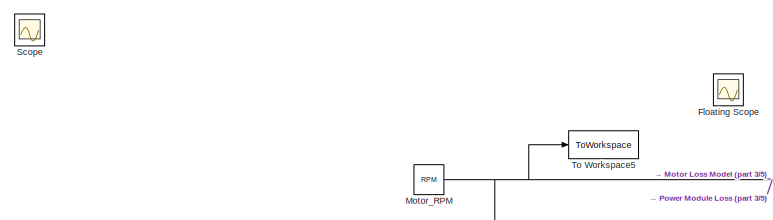
[diagram: root canvas - part 1/5, top left region]
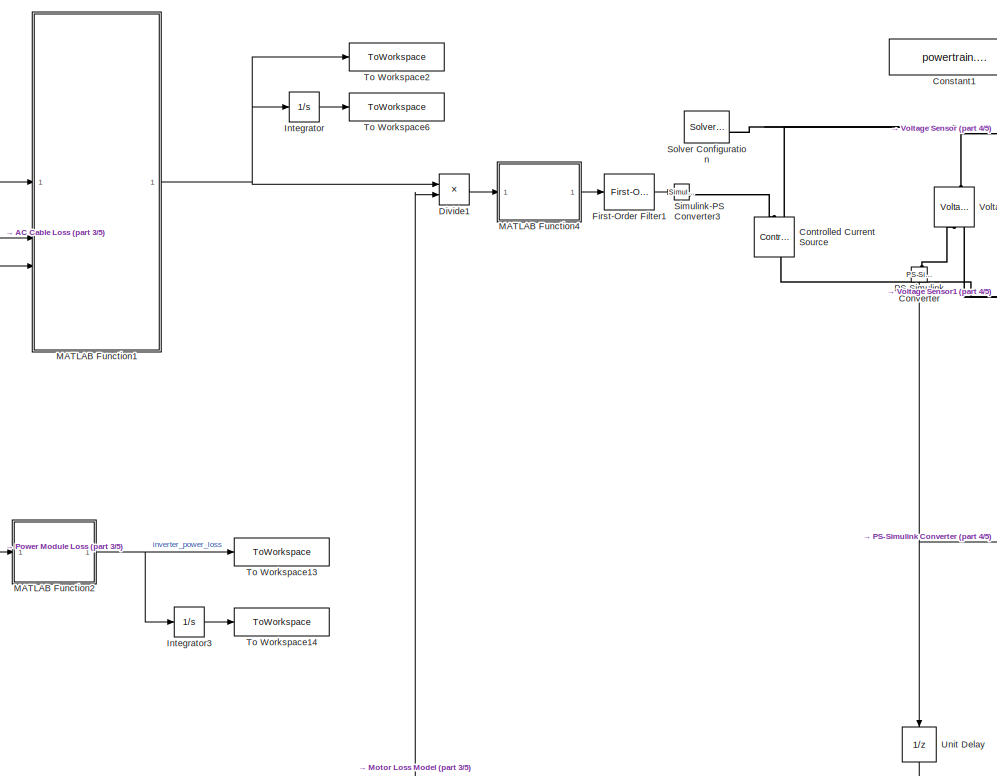
[diagram: root canvas - part 2/5, central region]
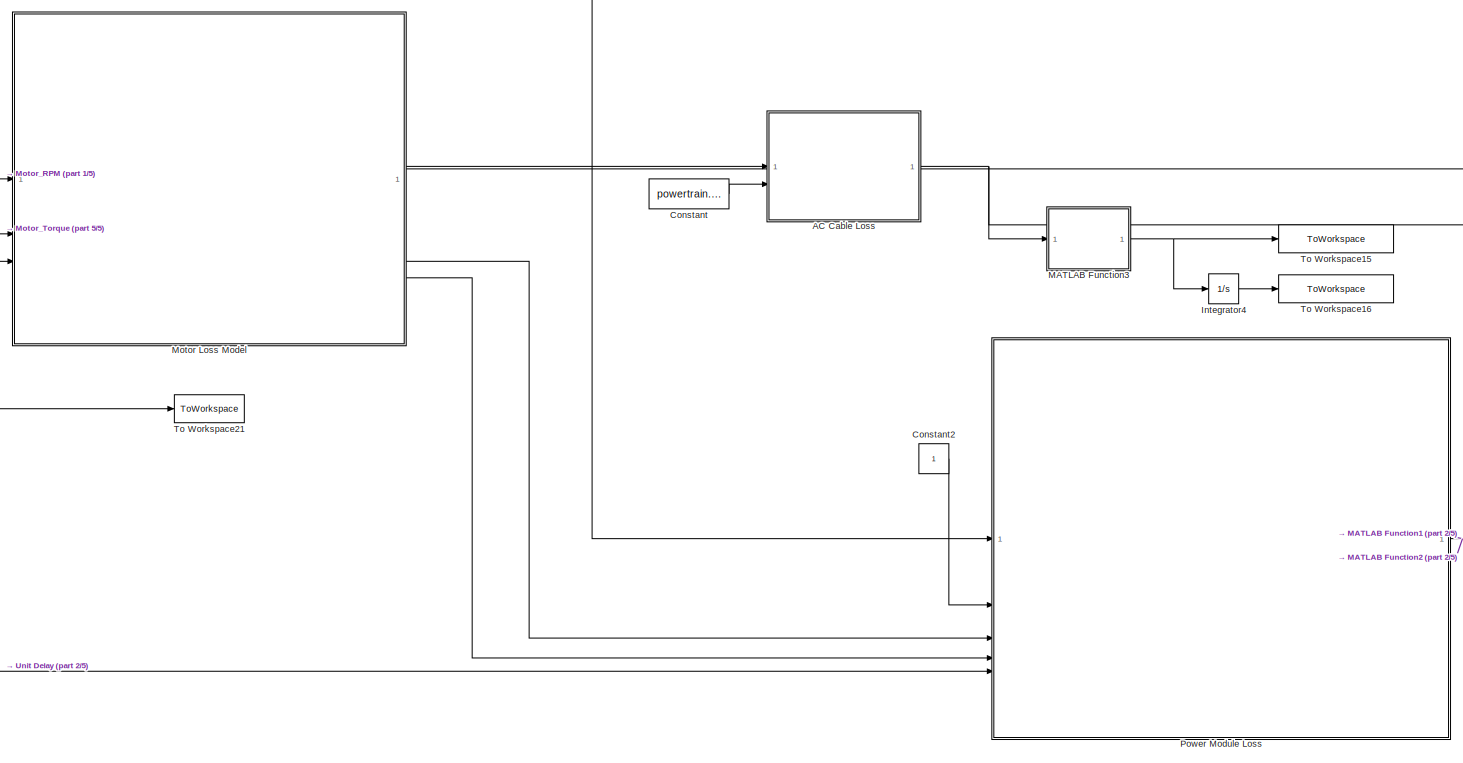
[diagram: root canvas - part 3/5, middle left region]
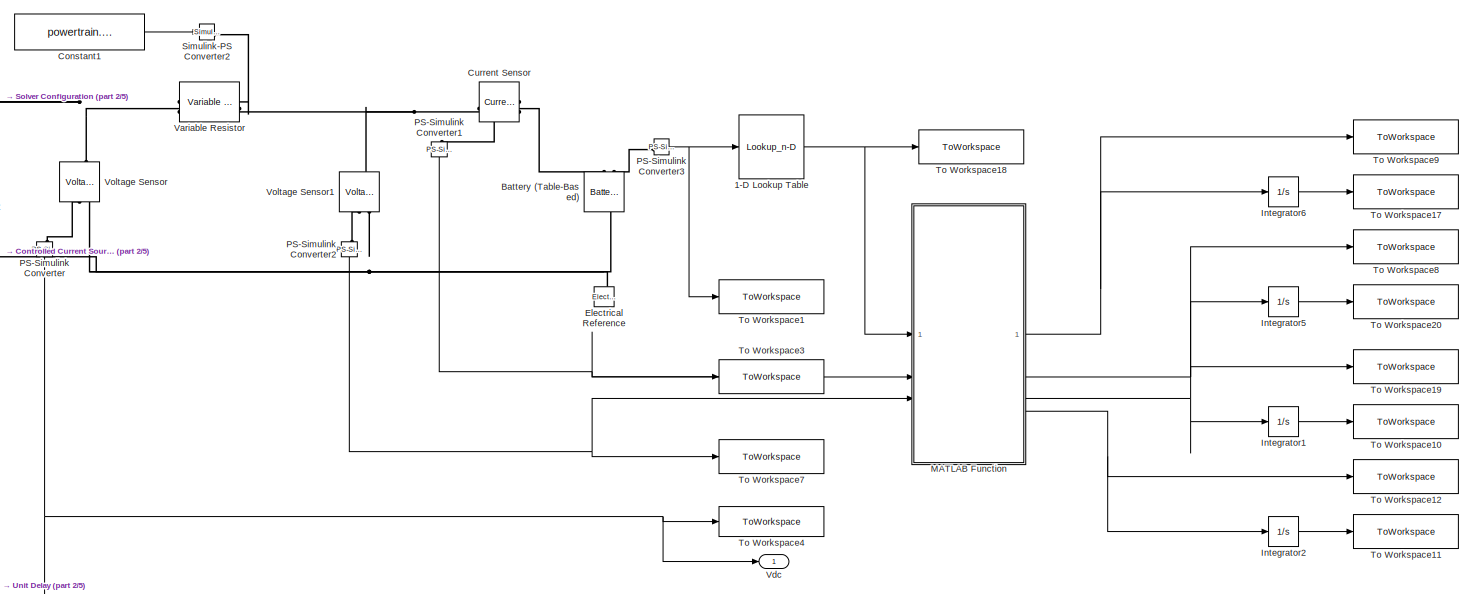
[diagram: root canvas - part 4/5, middle right region]
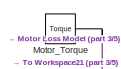
[diagram: root canvas - part 5/5, middle left region]
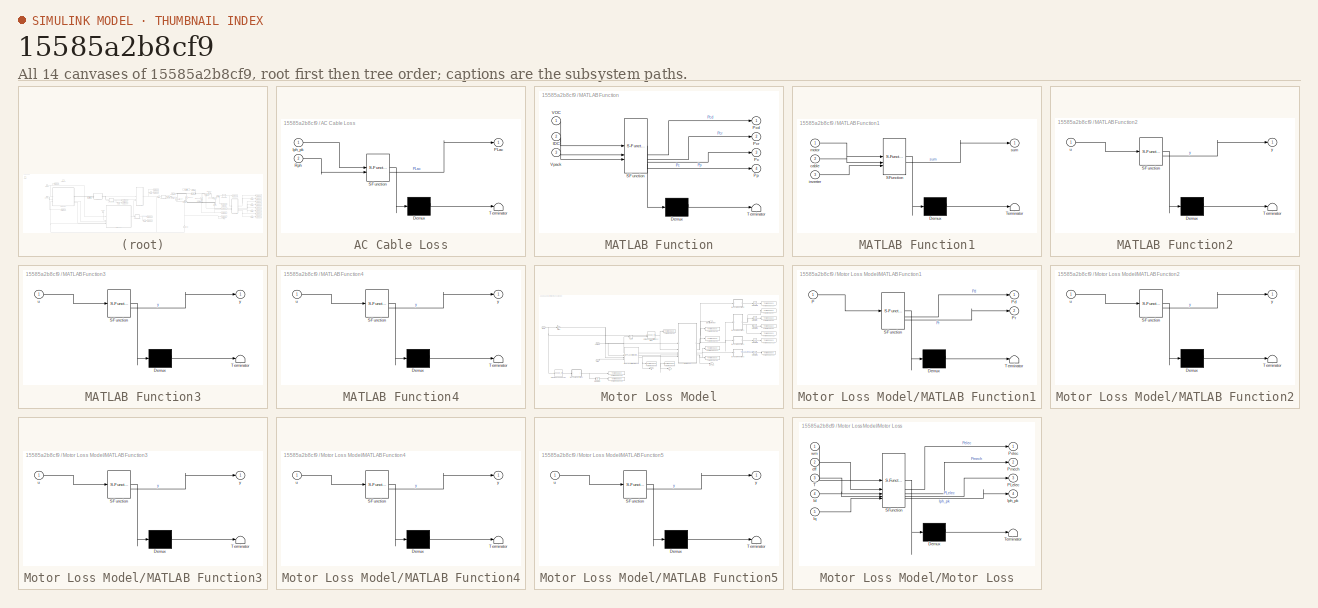
[diagram: thumbnail index - all 14 canvases of the model, root first then tree order]
MODEL slx_15585a2b8cf9
KIND model
CONFIG AbsTol = auto
CONFIG EnableMultiTasking = off
CONFIG FixedStep = auto
CONFIG MaxStep = auto
CONFIG MinStep = 1e-6
CONFIG RelTol = 1e-3
CONFIG SampleTimeConstraint = Unconstrained
CONFIG SolverName = VariableStepAuto
CONFIG StartTime = 0.0
CONFIG StopTime = 2862
WORKSPACE source: mxarray member
WORKSPACE surfaceBlockParameters: Simulink.LookupTable (value not decoded)
BLOCK [Lookup_n-D] 1-D Lookup Table
  BreakpointsForDimension1 = battery.soc_x_ocv_y(:,1)
  InputPortMap = u0
  InternalRulePriority = Speed
  NumberOfTableDimensions = 1
  RndMeth = Simplest
  Table = battery.soc_x_ocv_y(:,2)*battery.S
BLOCK [SubSystem] AC Cable Loss
  ErrorFcn = Stateflow.Translate.translate
  PermitHierarchicalResolution = ExplicitOnly
  SFBlockType = MATLAB Function
  TreatAsAtomicUnit = on
BLOCK [Demux] AC Cable Loss/ Demux 
  Outputs = 1
BLOCK [S-Function] AC Cable Loss/ SFunction 
  EnableBusSupport = on
  FunctionName = sf_sfun
  PortCounts = [2 2]
  SFcnIsStateOwnerBlock = off
  SFunctionDeploymentMode = off
  Tag = Stateflow S-Function 1
BLOCK [Terminator] AC Cable Loss/ Terminator 
BLOCK [Inport] AC Cable Loss/Iph_pk
BLOCK [Outport] AC Cable Loss/PLac
BLOCK [Inport] AC Cable Loss/Rph
  Port = 2
BLOCK [Reference] Battery (Table-Based)  REF=batteryecm_lib/Battery
(Table-Based)
  LibrarySourceBlock = batt_lib/Cells/Battery\n(Table-Based)
  NameLocation = right
  SourceBlock = batteryecm_lib/Battery\n(Table-Based)
  SourceType = Battery\n(Table-Based)
BLOCK [Constant] Constant
  Value = powertrain.Rph
BLOCK [Constant] Constant1
  Value = powertrain.Rdc
BLOCK [Constant] Constant2
BLOCK [Reference] Controlled Current Source  REF=fl_lib/Electrical/Electrical Sources/Controlled Current
Source
  NameLocation = left
  SourceBlock = fl_lib/Electrical/Electrical Sources/Controlled Current\nSource
  SourceType = Controlled Current\nSource
BLOCK [Reference] Current Sensor  REF=fl_lib/Electrical/Electrical Sensors/Current Sensor
  NameLocation = top
  SourceBlock = fl_lib/Electrical/Electrical Sensors/Current Sensor
  SourceType = Current Sensor
BLOCK [Product] Divide1
  Inputs = */
BLOCK [Reference] Electrical Reference  REF=fl_lib/Electrical/Electrical Elements/Electrical Reference
  NameLocation = right
  SourceBlock = fl_lib/Electrical/Electrical Elements/Electrical Reference
  SourceType = Electrical Reference
BLOCK [Reference] First-Order Filter1  REF=spsFirstOrderFilterLib/First-Order
Filter
  LibrarySourceBlock = sps_lib/Control/Filters/First-Order\nFilter
  SourceBlock = spsFirstOrderFilterLib/First-Order\nFilter
  SourceType = First-Order Filter
BLOCK [Scope] Floating Scope
  Floating = on
  NumInputPorts = 1
  ScopeSpecificationString = Simulink.scopes.TimeScopeBlockCfg('CurrentConfiguration', extmgr.ConfigurationSet(extmgr.Configuration('Core','General UI',true),extmgr.Configuration('Core','Source UI',true),extmgr.Configuration('Sources','WiredSimulink',true,'DataLoggingVariableName','ScopeData1'),extmgr.Configuration('Visuals','Time Domain',true,'SerializedDisplays',{struct('MinYLimReal','-481.00000','MaxYLimReal','3899.00000',...<+3468ch>
BLOCK [Integrator] Integrator
BLOCK [Integrator] Integrator1
BLOCK [Integrator] Integrator2
BLOCK [Integrator] Integrator3
BLOCK [Integrator] Integrator4
BLOCK [Integrator] Integrator5
BLOCK [Integrator] Integrator6
BLOCK [SubSystem] MATLAB Function
  ErrorFcn = Stateflow.Translate.translate
  PermitHierarchicalResolution = ExplicitOnly
  SFBlockType = MATLAB Function
  TreatAsAtomicUnit = on
BLOCK [Demux] MATLAB Function/ Demux 
  Outputs = 1
BLOCK [S-Function] MATLAB Function/ SFunction 
  EnableBusSupport = on
  FunctionName = sf_sfun
  PortCounts = [3 5]
  SFcnIsStateOwnerBlock = off
  SFunctionDeploymentMode = off
  Tag = Stateflow S-Function 47
BLOCK [Terminator] MATLAB Function/ Terminator 
BLOCK [Inport] MATLAB Function/IDC
  Port = 2
BLOCK [Outport] MATLAB Function/Pc
  Port = 3
BLOCK [Outport] MATLAB Function/Pcd
BLOCK [Outport] MATLAB Function/Pcr
  Port = 2
BLOCK [Outport] MATLAB Function/Pp
  Port = 4
BLOCK [Inport] MATLAB Function/VOC
BLOCK [Inport] MATLAB Function/Vpack
  Port = 3
BLOCK [SubSystem] MATLAB Function1
  ErrorFcn = Stateflow.Translate.translate
  PermitHierarchicalResolution = ExplicitOnly
  SFBlockType = MATLAB Function
  TreatAsAtomicUnit = on
BLOCK [Demux] MATLAB Function1/ Demux 
  Outputs = 1
BLOCK [S-Function] MATLAB Function1/ SFunction 
  EnableBusSupport = on
  FunctionName = sf_sfun
  PortCounts = [3 2]
  SFcnIsStateOwnerBlock = off
  SFunctionDeploymentMode = off
  Tag = Stateflow S-Function 5
BLOCK [Terminator] MATLAB Function1/ Terminator 
BLOCK [Inport] MATLAB Function1/cable
  Port = 2
BLOCK [Inport] MATLAB Function1/inverter
  Port = 3
BLOCK [Inport] MATLAB Function1/motor
BLOCK [Outport] MATLAB Function1/sum
BLOCK [SubSystem] MATLAB Function2
  ErrorFcn = Stateflow.Translate.translate
  PermitHierarchicalResolution = ExplicitOnly
  SFBlockType = MATLAB Function
  TreatAsAtomicUnit = on
BLOCK [Demux] MATLAB Function2/ Demux 
  Outputs = 1
BLOCK [S-Function] MATLAB Function2/ SFunction 
  EnableBusSupport = on
  FunctionName = sf_sfun
  PortCounts = [1 2]
  SFcnIsStateOwnerBlock = off
  SFunctionDeploymentMode = off
  Tag = Stateflow S-Function 9
BLOCK [Terminator] MATLAB Function2/ Terminator 
BLOCK [Inport] MATLAB Function2/u
BLOCK [Outport] MATLAB Function2/y
BLOCK [SubSystem] MATLAB Function3
  ErrorFcn = Stateflow.Translate.translate
  PermitHierarchicalResolution = ExplicitOnly
  SFBlockType = MATLAB Function
  TreatAsAtomicUnit = on
BLOCK [Demux] MATLAB Function3/ Demux 
  Outputs = 1
BLOCK [S-Function] MATLAB Function3/ SFunction 
  EnableBusSupport = on
  FunctionName = sf_sfun
  PortCounts = [1 2]
  SFcnIsStateOwnerBlock = off
  SFunctionDeploymentMode = off
  Tag = Stateflow S-Function 10
BLOCK [Terminator] MATLAB Function3/ Terminator 
BLOCK [Inport] MATLAB Function3/u
BLOCK [Outport] MATLAB Function3/y
BLOCK [SubSystem] MATLAB Function4
  ErrorFcn = Stateflow.Translate.translate
  PermitHierarchicalResolution = ExplicitOnly
  SFBlockType = MATLAB Function
  TreatAsAtomicUnit = on
BLOCK [Demux] MATLAB Function4/ Demux 
  Outputs = 1
BLOCK [S-Function] MATLAB Function4/ SFunction 
  EnableBusSupport = on
  FunctionName = sf_sfun
  PortCounts = [1 2]
  SFcnIsStateOwnerBlock = off
  SFunctionDeploymentMode = off
  Tag = Stateflow S-Function 12
BLOCK [Terminator] MATLAB Function4/ Terminator 
BLOCK [Inport] MATLAB Function4/u
BLOCK [Outport] MATLAB Function4/y
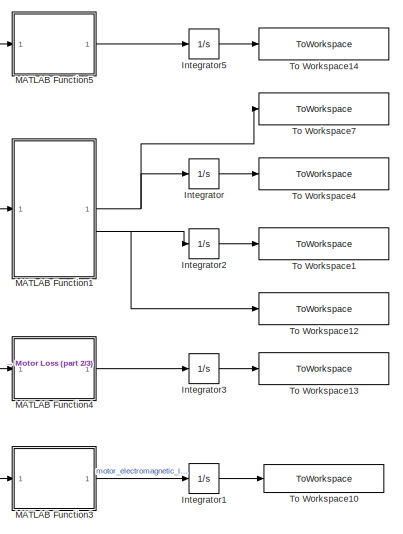
[diagram: Motor Loss Model - part 1/3, middle right region]
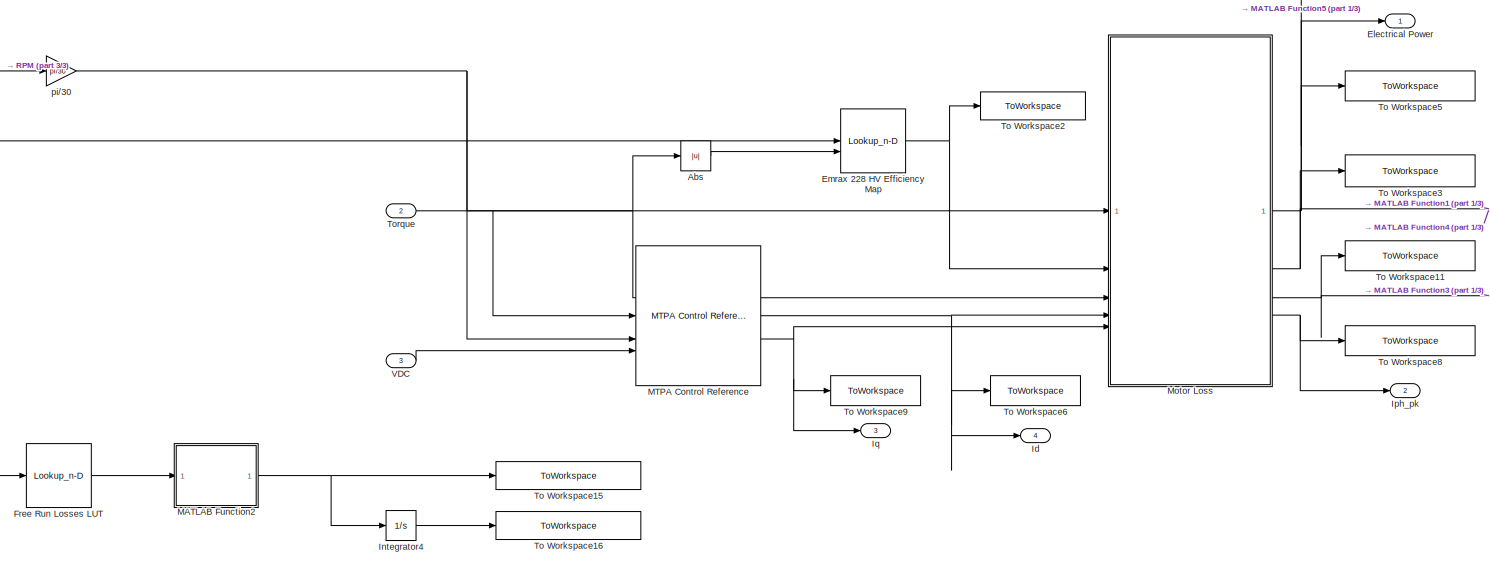
[diagram: Motor Loss Model - part 2/3, central region]
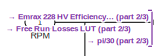
[diagram: Motor Loss Model - part 3/3, middle left region]
BLOCK [SubSystem] Motor Loss Model
BLOCK [Abs] Motor Loss Model/Abs
  SaturateOnIntegerOverflow = off
BLOCK [Outport] Motor Loss Model/Electrical Power
BLOCK [Lookup_n-D] Motor Loss Model/Emrax 228 HV Efficiency Map
  AttributesFormatString = Extrapolation=%<ExtrapMethod>
  BreakpointsForDimension1 = [1:3]
  BreakpointsForDimension2 = [1:3]
  DataSpecification = Lookup table object
  ExtrapMethod = Clip
  InputPortMap = u0,u1
  InternalRulePriority = Speed
  LookupTableObject = surfaceBlockParameters
  RndMeth = Simplest
BLOCK [Lookup_n-D] Motor Loss Model/Free Run Losses LUT
  BreakpointsForDimension1 = motor.RPM_x_Power_y(:, 1)
  InputPortMap = u0
  InternalRulePriority = Speed
  NumberOfTableDimensions = 1
  RndMeth = Simplest
  Table = motor.RPM_x_Power_y(:, 2)
BLOCK [Outport] Motor Loss Model/Id
  OutDataTypeStr = double
  Port = 4
BLOCK [Integrator] Motor Loss Model/Integrator
BLOCK [Integrator] Motor Loss Model/Integrator1
BLOCK [Integrator] Motor Loss Model/Integrator2
BLOCK [Integrator] Motor Loss Model/Integrator3
BLOCK [Integrator] Motor Loss Model/Integrator4
BLOCK [Integrator] Motor Loss Model/Integrator5
BLOCK [Outport] Motor Loss Model/Iph_pk
  Port = 2
BLOCK [Outport] Motor Loss Model/Iq
  OutDataTypeStr = double
  Port = 3
BLOCK [SubSystem] Motor Loss Model/MATLAB Function1
  ErrorFcn = Stateflow.Translate.translate
  PermitHierarchicalResolution = ExplicitOnly
  SFBlockType = MATLAB Function
  TreatAsAtomicUnit = on
BLOCK [Demux] Motor Loss Model/MATLAB Function1/ Demux 
  Outputs = 1
BLOCK [S-Function] Motor Loss Model/MATLAB Function1/ SFunction 
  EnableBusSupport = on
  FunctionName = sf_sfun
  PortCounts = [1 3]
  SFcnIsStateOwnerBlock = off
  SFunctionDeploymentMode = off
  Tag = Stateflow S-Function 14
BLOCK [Terminator] Motor Loss Model/MATLAB Function1/ Terminator 
BLOCK [Inport] Motor Loss Model/MATLAB Function1/P
BLOCK [Outport] Motor Loss Model/MATLAB Function1/Pd
BLOCK [Outport] Motor Loss Model/MATLAB Function1/Pr
  Port = 2
BLOCK [SubSystem] Motor Loss Model/MATLAB Function2
  ErrorFcn = Stateflow.Translate.translate
  PermitHierarchicalResolution = ExplicitOnly
  SFBlockType = MATLAB Function
  TreatAsAtomicUnit = on
BLOCK [Demux] Motor Loss Model/MATLAB Function2/ Demux 
  Outputs = 1
BLOCK [S-Function] Motor Loss Model/MATLAB Function2/ SFunction 
  EnableBusSupport = on
  FunctionName = sf_sfun
  PortCounts = [1 2]
  SFcnIsStateOwnerBlock = off
  SFunctionDeploymentMode = off
  Tag = Stateflow S-Function 8
BLOCK [Terminator] Motor Loss Model/MATLAB Function2/ Terminator 
BLOCK [Inport] Motor Loss Model/MATLAB Function2/u
BLOCK [Outport] Motor Loss Model/MATLAB Function2/y
BLOCK [SubSystem] Motor Loss Model/MATLAB Function3
  ErrorFcn = Stateflow.Translate.translate
  PermitHierarchicalResolution = ExplicitOnly
  SFBlockType = MATLAB Function
  TreatAsAtomicUnit = on
BLOCK [Demux] Motor Loss Model/MATLAB Function3/ Demux 
  Outputs = 1
BLOCK [S-Function] Motor Loss Model/MATLAB Function3/ SFunction 
  EnableBusSupport = on
  FunctionName = sf_sfun
  PortCounts = [1 2]
  SFcnIsStateOwnerBlock = off
  SFunctionDeploymentMode = off
  Tag = Stateflow S-Function 11
BLOCK [Terminator] Motor Loss Model/MATLAB Function3/ Terminator 
BLOCK [Inport] Motor Loss Model/MATLAB Function3/u
BLOCK [Outport] Motor Loss Model/MATLAB Function3/y
BLOCK [SubSystem] Motor Loss Model/MATLAB Function4
  ErrorFcn = Stateflow.Translate.translate
  PermitHierarchicalResolution = ExplicitOnly
  SFBlockType = MATLAB Function
  TreatAsAtomicUnit = on
BLOCK [Demux] Motor Loss Model/MATLAB Function4/ Demux 
  Outputs = 1
BLOCK [S-Function] Motor Loss Model/MATLAB Function4/ SFunction 
  EnableBusSupport = on
  FunctionName = sf_sfun
  PortCounts = [1 2]
  SFcnIsStateOwnerBlock = off
  SFunctionDeploymentMode = off
  Tag = Stateflow S-Function 13
BLOCK [Terminator] Motor Loss Model/MATLAB Function4/ Terminator 
BLOCK [Inport] Motor Loss Model/MATLAB Function4/u
BLOCK [Outport] Motor Loss Model/MATLAB Function4/y
BLOCK [SubSystem] Motor Loss Model/MATLAB Function5
  ErrorFcn = Stateflow.Translate.translate
  PermitHierarchicalResolution = ExplicitOnly
  SFBlockType = MATLAB Function
  TreatAsAtomicUnit = on
BLOCK [Demux] Motor Loss Model/MATLAB Function5/ Demux 
  Outputs = 1
BLOCK [S-Function] Motor Loss Model/MATLAB Function5/ SFunction 
  EnableBusSupport = on
  FunctionName = sf_sfun
  PortCounts = [1 2]
  SFcnIsStateOwnerBlock = off
  SFunctionDeploymentMode = off
  Tag = Stateflow S-Function 16
BLOCK [Terminator] Motor Loss Model/MATLAB Function5/ Terminator 
BLOCK [Inport] Motor Loss Model/MATLAB Function5/u
BLOCK [Outport] Motor Loss Model/MATLAB Function5/y
BLOCK [Reference] Motor Loss Model/MTPA Control Reference  REF=mcbcontrolslib/MTPA Control Reference
  LibrarySourceBlock = mcblib/Controls/Control Reference/MTPA Control Reference
  SourceBlock = mcbcontrolslib/MTPA Control Reference
  SourceType = MTPA Control Reference
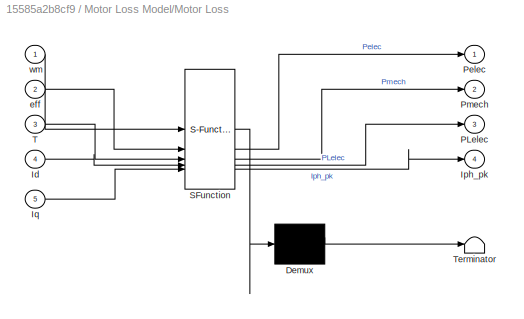
BLOCK [SubSystem] Motor Loss Model/Motor Loss
  ErrorFcn = Stateflow.Translate.translate
  PermitHierarchicalResolution = ExplicitOnly
  SFBlockType = MATLAB Function
  TreatAsAtomicUnit = on
BLOCK [Demux] Motor Loss Model/Motor Loss/ Demux 
  Outputs = 1
BLOCK [S-Function] Motor Loss Model/Motor Loss/ SFunction 
  EnableBusSupport = on
  FunctionName = sf_sfun
  PortCounts = [5 5]
  SFcnIsStateOwnerBlock = off
  SFunctionDeploymentMode = off
  Tag = Stateflow S-Function 3
BLOCK [Terminator] Motor Loss Model/Motor Loss/ Terminator 
BLOCK [Inport] Motor Loss Model/Motor Loss/Id
  Port = 4
BLOCK [Outport] Motor Loss Model/Motor Loss/Iph_pk
  Port = 4
BLOCK [Inport] Motor Loss Model/Motor Loss/Iq
  Port = 5
BLOCK [Outport] Motor Loss Model/Motor Loss/PLelec
  Port = 3
BLOCK [Outport] Motor Loss Model/Motor Loss/Pelec
BLOCK [Outport] Motor Loss Model/Motor Loss/Pmech
  Port = 2
BLOCK [Inport] Motor Loss Model/Motor Loss/T
  Port = 3
BLOCK [Inport] Motor Loss Model/Motor Loss/eff
  Port = 2
BLOCK [Inport] Motor Loss Model/Motor Loss/wm
BLOCK [Inport] Motor Loss Model/RPM
BLOCK [ToWorkspace] Motor Loss Model/To Workspace1
  FixptAsFi = on
  MaxDataPoints = inf
  SampleTime = -1
  VariableName = Motor_Regen_Energy
BLOCK [ToWorkspace] Motor Loss Model/To Workspace10
  FixptAsFi = on
  MaxDataPoints = inf
  SampleTime = -1
  VariableName = Motor_EM_Energy_Loss
BLOCK [ToWorkspace] Motor Loss Model/To Workspace11
  FixptAsFi = on
  MaxDataPoints = inf
  SampleTime = -1
  VariableName = Motor_Electromagnetic_Loss
BLOCK [ToWorkspace] Motor Loss Model/To Workspace12
  FixptAsFi = on
  MaxDataPoints = inf
  SampleTime = -1
  VariableName = Motor_Regen_Power
BLOCK [ToWorkspace] Motor Loss Model/To Workspace13
  FixptAsFi = on
  MaxDataPoints = inf
  SampleTime = -1
  VariableName = Motor_Mechanical_Energy
BLOCK [ToWorkspace] Motor Loss Model/To Workspace14
  FixptAsFi = on
  MaxDataPoints = inf
  SampleTime = -1
  VariableName = Motor_Electrical_Energy
BLOCK [ToWorkspace] Motor Loss Model/To Workspace15
  FixptAsFi = on
  MaxDataPoints = inf
  SampleTime = -1
  VariableName = Motor_Mechanical_Power_Loss
BLOCK [ToWorkspace] Motor Loss Model/To Workspace16
  FixptAsFi = on
  MaxDataPoints = inf
  SampleTime = -1
  VariableName = Motor_Mechanical_Energy_Loss
BLOCK [ToWorkspace] Motor Loss Model/To Workspace2
  FixptAsFi = on
  MaxDataPoints = inf
  SampleTime = -1
  VariableName = Motor_Efficiency
BLOCK [ToWorkspace] Motor Loss Model/To Workspace3
  FixptAsFi = on
  MaxDataPoints = inf
  SampleTime = -1
  VariableName = Motor_Mechanical_Power
BLOCK [ToWorkspace] Motor Loss Model/To Workspace4
  FixptAsFi = on
  MaxDataPoints = inf
  SampleTime = -1
  VariableName = Motor_Discharge_Energy
BLOCK [ToWorkspace] Motor Loss Model/To Workspace5
  FixptAsFi = on
  MaxDataPoints = inf
  SampleTime = -1
  VariableName = Motor_Electrical_Power
BLOCK [ToWorkspace] Motor Loss Model/To Workspace6
  FixptAsFi = on
  MaxDataPoints = inf
  SampleTime = -1
  VariableName = Id_mtpa
BLOCK [ToWorkspace] Motor Loss Model/To Workspace7
  FixptAsFi = on
  MaxDataPoints = inf
  SampleTime = -1
  VariableName = Motor_Discharge_Power
BLOCK [ToWorkspace] Motor Loss Model/To Workspace8
  FixptAsFi = on
  MaxDataPoints = inf
  SampleTime = -1
  VariableName = Iph_pk
BLOCK [ToWorkspace] Motor Loss Model/To Workspace9
  FixptAsFi = on
  MaxDataPoints = inf
  SampleTime = -1
  VariableName = Iq_mtpa
BLOCK [Inport] Motor Loss Model/Torque
  Port = 2
BLOCK [Inport] Motor Loss Model/VDC
  Port = 3
BLOCK [Gain] Motor Loss Model/pi//30
  Gain = pi/30
  NameLocation = top
BLOCK [Constant] Motor_RPM
  Value = RPM
BLOCK [Constant] Motor_Torque
  Value = Torque
BLOCK [Reference] PS-Simulink Converter  REF=nesl_utility/PS-Simulink
Converter
  NameLocation = left
  SourceBlock = nesl_utility/PS-Simulink\nConverter
  SourceType = PS-Simulink\nConverter
BLOCK [Reference] PS-Simulink Converter1  REF=nesl_utility/PS-Simulink
Converter
  NameLocation = left
  SourceBlock = nesl_utility/PS-Simulink\nConverter
  SourceType = PS-Simulink\nConverter
BLOCK [Reference] PS-Simulink Converter2  REF=nesl_utility/PS-Simulink
Converter
  NameLocation = left
  SourceBlock = nesl_utility/PS-Simulink\nConverter
  SourceType = PS-Simulink\nConverter
BLOCK [Reference] PS-Simulink Converter3  REF=nesl_utility/PS-Simulink
Converter
  SourceBlock = nesl_utility/PS-Simulink\nConverter
  SourceType = PS-Simulink\nConverter
BLOCK [SubSystem] Power Module Loss
  ReferencedSubsystem = PowerModuleLoss
BLOCK [Scope] Scope
  Floating = off
  IOType = viewer
  NumInputPorts = 1
  ScopeSpecificationString = Simulink.scopes.TimeScopeBlockCfg('CurrentConfiguration', extmgr.ConfigurationSet(extmgr.Configuration('Core','General UI',true),extmgr.Configuration('Core','Source UI',true),extmgr.Configuration('Sources','WiredSimulink',true),extmgr.Configuration('Visuals','Time Domain',true,'SerializedDisplays',{struct('MinYLimReal','-10.00000','MaxYLimReal','10.00000','YLabelReal','','MinYLimMag','0.00000','Ma...<+1326ch>
BLOCK [Reference] Simulink-PS Converter2  REF=nesl_utility/Simulink-PS
Converter
  SourceBlock = nesl_utility/Simulink-PS\nConverter
  SourceType = Simulink-PS\nConverter
BLOCK [Reference] Simulink-PS Converter3  REF=nesl_utility/Simulink-PS
Converter
  SourceBlock = nesl_utility/Simulink-PS\nConverter
  SourceType = Simulink-PS\nConverter
BLOCK [Reference] Solver Configuration  REF=nesl_utility/Solver
Configuration
  SourceBlock = nesl_utility/Solver\nConfiguration
  SourceType = Solver\nConfiguration
BLOCK [ToWorkspace] To Workspace1
  FixptAsFi = on
  MaxDataPoints = inf
  SampleTime = -1
  VariableName = SOC
BLOCK [ToWorkspace] To Workspace10
  FixptAsFi = on
  MaxDataPoints = inf
  SampleTime = -1
  VariableName = Cell_Energy
BLOCK [ToWorkspace] To Workspace11
  FixptAsFi = on
  MaxDataPoints = inf
  SampleTime = -1
  VariableName = Battery_Energy
BLOCK [ToWorkspace] To Workspace12
  FixptAsFi = on
  MaxDataPoints = inf
  SampleTime = -1
  VariableName = Battery_Power
BLOCK [ToWorkspace] To Workspace13
  FixptAsFi = on
  MaxDataPoints = inf
  SampleTime = -1
  VariableName = Inverter_Power_Loss
BLOCK [ToWorkspace] To Workspace14
  FixptAsFi = on
  MaxDataPoints = inf
  SampleTime = -1
  VariableName = Inverter_Energy_Loss
BLOCK [ToWorkspace] To Workspace15
  FixptAsFi = on
  MaxDataPoints = inf
  SampleTime = -1
  VariableName = AC_Cable_Power_Loss
BLOCK [ToWorkspace] To Workspace16
  FixptAsFi = on
  MaxDataPoints = inf
  SampleTime = -1
  VariableName = AC_Cable_Energy_Loss
BLOCK [ToWorkspace] To Workspace17
  FixptAsFi = on
  MaxDataPoints = inf
  SampleTime = -1
  VariableName = Cell_Discharge_Energy
BLOCK [ToWorkspace] To Workspace18
  FixptAsFi = on
  MaxDataPoints = inf
  SampleTime = -1
  VariableName = VOC
BLOCK [ToWorkspace] To Workspace19
  FixptAsFi = on
  MaxDataPoints = inf
  SampleTime = -1
  VariableName = Cell_Power
BLOCK [ToWorkspace] To Workspace2
  FixptAsFi = on
  MaxDataPoints = inf
  SampleTime = -1
  VariableName = Inverter_Power
BLOCK [ToWorkspace] To Workspace20
  FixptAsFi = on
  MaxDataPoints = inf
  SampleTime = -1
  VariableName = Cell_Regen_Energy
BLOCK [ToWorkspace] To Workspace21
  FixptAsFi = on
  MaxDataPoints = inf
  SampleTime = -1
  VariableName = Torque
BLOCK [ToWorkspace] To Workspace3
  FixptAsFi = on
  MaxDataPoints = inf
  SampleTime = -1
  VariableName = IDC
BLOCK [ToWorkspace] To Workspace4
  FixptAsFi = on
  MaxDataPoints = inf
  SampleTime = -1
  VariableName = VDC
BLOCK [ToWorkspace] To Workspace5
  FixptAsFi = on
  MaxDataPoints = inf
  SampleTime = -1
  VariableName = RPM
BLOCK [ToWorkspace] To Workspace6
  FixptAsFi = on
  MaxDataPoints = inf
  SampleTime = -1
  VariableName = Inverter_Energy
BLOCK [ToWorkspace] To Workspace7
  FixptAsFi = on
  MaxDataPoints = inf
  SampleTime = -1
  VariableName = Vpack
BLOCK [ToWorkspace] To Workspace8
  FixptAsFi = on
  MaxDataPoints = inf
  SampleTime = -1
  VariableName = Cell_Regen_Power
BLOCK [ToWorkspace] To Workspace9
  FixptAsFi = on
  MaxDataPoints = inf
  SampleTime = -1
  VariableName = Cell_Discharge_Power
BLOCK [UnitDelay] Unit Delay
  HasFrameUpgradeWarning = on
  InitialCondition = battery.Voc
  NameLocation = left
  SampleTime = -1
BLOCK [Reference] Variable Resistor  REF=fl_lib/Electrical/Electrical Elements/Variable Resistor
  NameLocation = top
  SourceBlock = fl_lib/Electrical/Electrical Elements/Variable Resistor
  SourceType = Variable Resistor
BLOCK [Outport] Vdc
BLOCK [Reference] Voltage Sensor  REF=fl_lib/Electrical/Electrical Sensors/Voltage Sensor
  NameLocation = right
  SourceBlock = fl_lib/Electrical/Electrical Sensors/Voltage Sensor
  SourceType = Voltage Sensor
BLOCK [Reference] Voltage Sensor1  REF=fl_lib/Electrical/Electrical Sensors/Voltage Sensor
  NameLocation = right
  SourceBlock = fl_lib/Electrical/Electrical Sensors/Voltage Sensor
  SourceType = Voltage Sensor
NET 1-D Lookup Table:1 -> MATLAB Function:1, To Workspace18:1
NET AC Cable Loss:1 -> MATLAB Function1:2, MATLAB Function3:1
LINE Constant1:1 -> Simulink-PS Converter2:1
LINE Constant2:1 -> Power Module Loss:2
LINE Constant:1 -> AC Cable Loss:2
LINE Divide1:1 -> MATLAB Function4:1
LINE First-Order Filter1:1 -> Simulink-PS Converter3:1
LINE Integrator1:1 -> To Workspace10:1
LINE Integrator2:1 -> To Workspace11:1
LINE Integrator3:1 -> To Workspace14:1
LINE Integrator4:1 -> To Workspace16:1
LINE Integrator5:1 -> To Workspace20:1
LINE Integrator6:1 -> To Workspace17:1
LINE Integrator:1 -> To Workspace6:1
NET MATLAB Function1:1 -> Divide1:1, Integrator:1, To Workspace2:1
NET MATLAB Function2:1 -> Integrator3:1, To Workspace13:1
NET MATLAB Function3:1 -> Integrator4:1, To Workspace15:1
LINE MATLAB Function4:1 -> First-Order Filter1:1
NET MATLAB Function:1 -> Integrator6:1, To Workspace9:1
NET MATLAB Function:2 -> Integrator5:1, To Workspace8:1
NET MATLAB Function:3 -> Integrator1:1, To Workspace19:1
NET MATLAB Function:4 -> Integrator2:1, To Workspace12:1
LINE Motor Loss Model/Abs:1 -> Motor Loss Model/Emrax 228 HV Efficiency Map:2
NET Motor Loss Model/Emrax 228 HV Efficiency Map:1 -> Motor Loss Model/Motor Loss:2, Motor Loss Model/To Workspace2:1
LINE Motor Loss Model/Free Run Losses LUT:1 -> Motor Loss Model/MATLAB Function2:1
LINE Motor Loss Model/Integrator1:1 -> Motor Loss Model/To Workspace10:1
LINE Motor Loss Model/Integrator2:1 -> Motor Loss Model/To Workspace1:1
LINE Motor Loss Model/Integrator3:1 -> Motor Loss Model/To Workspace13:1
LINE Motor Loss Model/Integrator4:1 -> Motor Loss Model/To Workspace16:1
LINE Motor Loss Model/Integrator5:1 -> Motor Loss Model/To Workspace14:1
LINE Motor Loss Model/Integrator:1 -> Motor Loss Model/To Workspace4:1
NET Motor Loss Model/MATLAB Function1:1 -> Motor Loss Model/Integrator:1, Motor Loss Model/To Workspace7:1
NET Motor Loss Model/MATLAB Function1:2 -> Motor Loss Model/Integrator2:1, Motor Loss Model/To Workspace12:1
NET Motor Loss Model/MATLAB Function2:1 -> Motor Loss Model/Integrator4:1, Motor Loss Model/To Workspace15:1
LINE Motor Loss Model/MATLAB Function3:1 -> Motor Loss Model/Integrator1:1
LINE Motor Loss Model/MATLAB Function4:1 -> Motor Loss Model/Integrator3:1
LINE Motor Loss Model/MATLAB Function5:1 -> Motor Loss Model/Integrator5:1
NET Motor Loss Model/MTPA Control Reference:1 -> Motor Loss Model/Id:1, Motor Loss Model/Motor Loss:4, Motor Loss Model/To Workspace6:1
NET Motor Loss Model/MTPA Control Reference:2 -> Motor Loss Model/Iq:1, Motor Loss Model/Motor Loss:5, Motor Loss Model/To Workspace9:1
NET Motor Loss Model/Motor Loss:1 -> Motor Loss Model/Electrical Power:1, Motor Loss Model/MATLAB Function5:1, Motor Loss Model/To Workspace5:1
NET Motor Loss Model/Motor Loss:2 -> Motor Loss Model/MATLAB Function1:1, Motor Loss Model/MATLAB Function4:1, Motor Loss Model/To Workspace3:1
NET Motor Loss Model/Motor Loss:3 -> Motor Loss Model/MATLAB Function3:1, Motor Loss Model/To Workspace11:1
NET Motor Loss Model/Motor Loss:4 -> Motor Loss Model/Iph_pk:1, Motor Loss Model/To Workspace8:1
NET Motor Loss Model/RPM:1 -> Motor Loss Model/Emrax 228 HV Efficiency Map:1, Motor Loss Model/Free Run Losses LUT:1, Motor Loss Model/pi//30:1
NET Motor Loss Model/Torque:1 -> Motor Loss Model/Abs:1, Motor Loss Model/MTPA Control Reference:1, Motor Loss Model/Motor Loss:3
LINE Motor Loss Model/VDC:1 -> Motor Loss Model/MTPA Control Reference:3
NET Motor Loss Model/pi//30:1 -> Motor Loss Model/MTPA Control Reference:2, Motor Loss Model/Motor Loss:1
LINE Motor Loss Model:1 -> MATLAB Function1:1
LINE Motor Loss Model:2 -> AC Cable Loss:1
LINE Motor Loss Model:3 -> Power Module Loss:3
LINE Motor Loss Model:4 -> Power Module Loss:4
NET Motor_RPM:1 -> Motor Loss Model:1, Power Module Loss:1, To Workspace5:1
NET Motor_Torque:1 -> Motor Loss Model:2, To Workspace21:1
NET PS-Simulink Converter1:1 -> MATLAB Function:2, To Workspace3:1
NET PS-Simulink Converter2:1 -> MATLAB Function:3, To Workspace7:1
NET PS-Simulink Converter3:1 -> 1-D Lookup Table:1, To Workspace1:1
NET PS-Simulink Converter:1 -> To Workspace4:1, Unit Delay:1, Vdc:1
NET Power Module Loss:1 -> MATLAB Function1:3, MATLAB Function2:1
NET Unit Delay:1 -> Divide1:2, Motor Loss Model:3, Power Module Loss:5
PLINE Battery (Table-Based):LConn1 -- Current Sensor:LConn1
PLINE Battery (Table-Based):LConn2 -- PS-Simulink Converter3:LConn1
PNET net1: Battery (Table-Based):RConn1 -- Controlled Current Source:LConn1 -- Electrical Reference:LConn1 -- Voltage Sensor1:RConn2 -- Voltage Sensor:RConn2
PLINE Controlled Current Source:RConn1 -- Simulink-PS Converter3:RConn1
PNET net2: Controlled Current Source:RConn2 -- Solver Configuration:RConn1 -- Variable Resistor:RConn1 -- Voltage Sensor:LConn1
PLINE Current Sensor:RConn1 -- PS-Simulink Converter1:LConn1
PNET net3: Current Sensor:RConn2 -- Variable Resistor:LConn2 -- Voltage Sensor1:LConn1
PLINE PS-Simulink Converter2:LConn1 -- Voltage Sensor1:RConn1
PLINE PS-Simulink Converter:LConn1 -- Voltage Sensor:RConn1
PLINE Simulink-PS Converter2:RConn1 -- Variable Resistor:LConn1
note: NET lines group one-source signal fan-out (src -> all destinations, sorted); 1:1 wires keep LINE; PNET lines group multi-terminal physical nets as a canonical sorted terminal list (undirected conserving connections); 2-terminal nets keep the pairwise PLINE form
CHART Motor Loss Model/MATLAB Function1 states=1 transitions=1
  STATE_LABEL 'eML_blk_kernel()'
  STATE_LABEL 'SCRIPT:\nfunction [Pd, Pr] = power(P)\n    if isnan(P)\n        Pd = 0;\n        Pr = 0;\n    elseif P>0\n        Pd = P;\n        Pr = 0;\n    else\n        Pd = 0;\n        Pr = -P;\n    end\nend'
CHART Motor Loss Model/MATLAB Function5 states=1 transitions=1
  STATE_LABEL 'eML_blk_kernel()'
  STATE_LABEL 'SCRIPT:\nfunction y = power(u)\n    if isnan(u)\n        y = 0;\n    else\n        y = u;\n    end\nend'
CHART MATLAB Function states=1 transitions=1
  STATE_LABEL 'eML_blk_kernel()'
  STATE_LABEL 'SCRIPT:\nfunction [Pcd, Pcr, Pc, Pp] = fcn(VOC, IDC, Vpack)\n    if IDC>0\n        Pcr = 0;\n        Pcd = IDC * VOC;\n    else\n        Pcr = -IDC * VOC;\n        Pcd = 0;\n    end\n    Pc = IDC * VOC;\n    Pp = IDC * Vpack;\nend\n'
CHART AC Cable Loss states=1 transitions=1
  STATE_LABEL 'eML_blk_kernel()'
  STATE_LABEL 'SCRIPT:\nfunction PLac = ACCableLoss(Iph_pk, Rph)\n\n    PLac = 1.5 * (Iph_pk)^2 * Rph;\n\nend\n'
CHART Motor Loss Model/Motor Loss states=1 transitions=1
  STATE_LABEL 'eML_blk_kernel()'
  STATE_LABEL 'SCRIPT:\nfunction [Pelec, Pmech, PLelec, Iph_pk] = MotorLoss(wm, eff, T, Id, Iq)\n    Pelec = wm * T;\n    if Pelec >= 0\n        Pmech = Pelec * (eff);\n    else\n        Pmech = Pelec * (1/eff);\n    end\n    PLelec = Pelec - Pmech;\n    Iph_pk = (Id^2 + Iq^2)^0.5;\nend\n'
CHART MATLAB Function1 states=1 transitions=1
  STATE_LABEL 'eML_blk_kernel()'
  STATE_LABEL 'SCRIPT:\nfunction sum = Ptotal(motor, cable, inverter)\nsum = motor + cable + inverter;\n    if isnan(sum)\n        sum = 0;\n    end\nend'
CHART Motor Loss Model/MATLAB Function2 states=1 transitions=1
  STATE_LABEL 'eML_blk_kernel()'
  STATE_LABEL 'SCRIPT:\nfunction y = power(u)\n    if isnan(u)\n        y = 0;\n    else\n        y = u;\n    end\nend'
CHART MATLAB Function2 states=1 transitions=1
  STATE_LABEL 'eML_blk_kernel()'
  STATE_LABEL 'SCRIPT:\nfunction y = power(u)\n    if isnan(u)\n        y = 0;\n    else\n        y = u;\n    end\nend'
CHART MATLAB Function3 states=1 transitions=1
  STATE_LABEL 'eML_blk_kernel()'
  STATE_LABEL 'SCRIPT:\nfunction y = power(u)\n    if isnan(u)\n        y = 0;\n    else\n        y = u;\n    end\nend'
CHART Motor Loss Model/MATLAB Function3 states=1 transitions=1
  STATE_LABEL 'eML_blk_kernel()'
  STATE_LABEL 'SCRIPT:\nfunction y = power(u)\n    if isnan(u)\n        y = 0;\n    else\n        y = u;\n    end\nend'
CHART MATLAB Function4 states=1 transitions=1
  STATE_LABEL 'eML_blk_kernel()'
  STATE_LABEL 'SCRIPT:\nfunction y = current(u)\n    if isnan(u)\n        y = 0;\n    else\n        y = u;\n    end\nend'
CHART Motor Loss Model/MATLAB Function4 states=1 transitions=1
  STATE_LABEL 'eML_blk_kernel()'
  STATE_LABEL 'SCRIPT:\nfunction y = power(u)\n    if isnan(u)\n        y = 0;\n    else\n        y = u;\n    end\nend'
CHART  states=0 transitions=0
CHART  states=0 transitions=0
CHART  states=0 transitions=0
CHART  states=0 transitions=0
CHART  states=0 transitions=0
CHART  states=0 transitions=0
CHART  states=0 transitions=0
CHART  states=0 transitions=0
CHART  states=0 transitions=0
CHART  states=0 transitions=0
CHART  states=0 transitions=0
CHART  states=0 transitions=0
